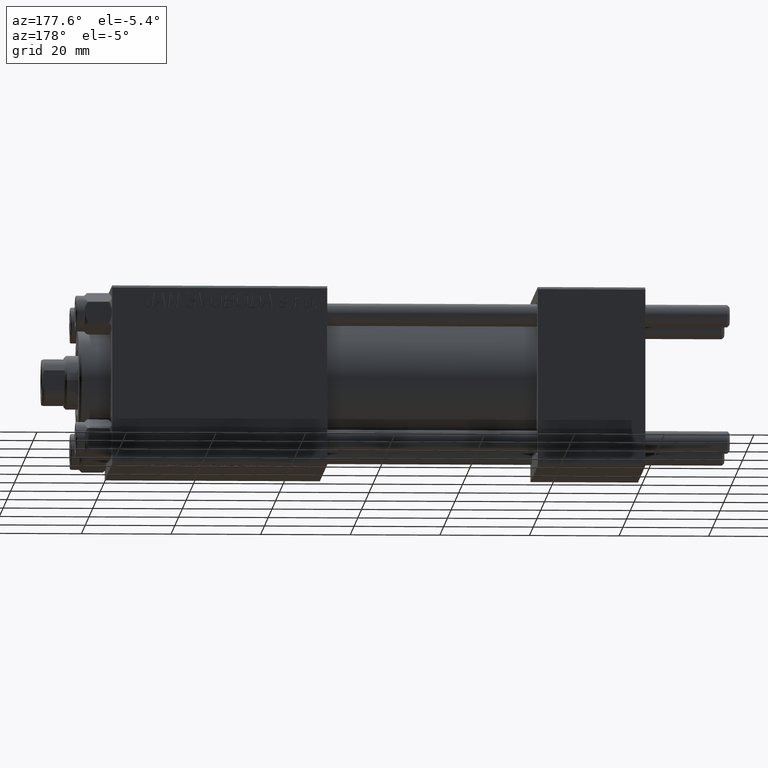
[diagram: clean part render]
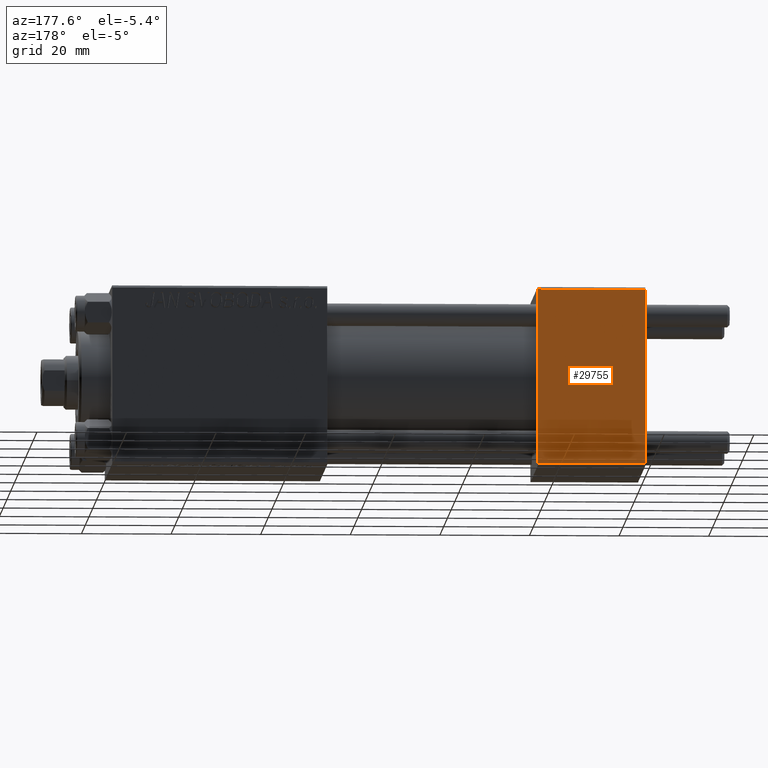
[diagram: same view with one face highlighted and labeled with its STEP entity id]
A machine part, auxiliary view. The second image highlights one B-rep face of the part: STEP entity #29755.
In plain terms, the highlighted planar face has unit normal (0, 1, 0).
Its self-contained STEP definition (entity closure, byte-faithful):
#767 = EDGE_CURVE ( 'NONE', #34701, #8099, #22754, .T. ) ;
#4119 = DIRECTION ( 'NONE',  ( -1.000000000000000000, 0.000000000000000000, 0.000000000000000000 ) ) ;
#5790 = DIRECTION ( 'NONE',  ( 0.000000000000000000, 0.000000000000000000, -1.000000000000000000 ) ) ;
#7184 = DIRECTION ( 'NONE',  ( 0.000000000000000000, 0.000000000000000000, -1.000000000000000000 ) ) ;
#8099 = VERTEX_POINT ( 'NONE', #47985 ) ;
#8672 = DIRECTION ( 'NONE',  ( -0.000000000000000000, 1.000000000000000000, 0.000000000000000000 ) ) ;
#10484 = CARTESIAN_POINT ( 'NONE',  ( 0.000000000000000000, 20.00000000000000000, 19.49999999999999289 ) ) ;
#10846 = DIRECTION ( 'NONE',  ( 1.000000000000000000, 0.000000000000000000, 0.000000000000000000 ) ) ;
#13462 = VERTEX_POINT ( 'NONE', #10484 ) ;
#18724 = CARTESIAN_POINT ( 'NONE',  ( 24.00000000000000000, 20.00000000000000000, 19.49999999999999289 ) ) ;
#20311 = VECTOR ( 'NONE', #7184, 1000.000000000000000 ) ;
#20971 = FACE_OUTER_BOUND ( 'NONE', #31496, .T. ) ;
#21500 = VECTOR ( 'NONE', #10846, 1000.000000000000000 ) ;
#22754 = LINE ( 'NONE', #23004, #43027 ) ;
#23004 = CARTESIAN_POINT ( 'NONE',  ( 24.00000000000000000, 20.00000000000000000, -19.50000000000002132 ) ) ;
#23490 = AXIS2_PLACEMENT_3D ( 'NONE', #36344, #8672, #32561 ) ;
#24292 = ORIENTED_EDGE ( 'NONE', *, *, #49007, .T. ) ;
#26845 = ORIENTED_EDGE ( 'NONE', *, *, #45031, .T. ) ;
#29755 = ADVANCED_FACE ( 'NONE', ( #20971 ), #43156, .T. ) ;
#30088 = LINE ( 'NONE', #41164, #20311 ) ;
#30392 = EDGE_CURVE ( 'NONE', #13462, #8099, #30088, .T. ) ;
#30491 = CARTESIAN_POINT ( 'NONE',  ( 24.00000000000000000, 20.00000000000000000, 19.49999999999999289 ) ) ;
#31496 = EDGE_LOOP ( 'NONE', ( #26845, #34913, #33962, #24292 ) ) ;
#32561 = DIRECTION ( 'NONE',  ( 0.000000000000000000, -0.000000000000000000, 1.000000000000000000 ) ) ;
#33962 = ORIENTED_EDGE ( 'NONE', *, *, #30392, .F. ) ;
#34701 = VERTEX_POINT ( 'NONE', #42434 ) ;
#34913 = ORIENTED_EDGE ( 'NONE', *, *, #767, .T. ) ;
#36344 = CARTESIAN_POINT ( 'NONE',  ( 24.00000000000000000, 20.00000000000000000, 20.00000000000000000 ) ) ;
#40035 = CARTESIAN_POINT ( 'NONE',  ( 24.00000000000000000, 20.00000000000000000, 20.00000000000000000 ) ) ;
#41164 = CARTESIAN_POINT ( 'NONE',  ( 0.000000000000000000, 20.00000000000000000, 20.00000000000000000 ) ) ;
#42434 = CARTESIAN_POINT ( 'NONE',  ( 24.00000000000000000, 20.00000000000000000, -19.50000000000002132 ) ) ;
#43027 = VECTOR ( 'NONE', #4119, 1000.000000000000000 ) ;
#43156 = PLANE ( 'NONE',  #23490 ) ;
#44353 = LINE ( 'NONE', #30491, #21500 ) ;
#45031 = EDGE_CURVE ( 'NONE', #46884, #34701, #47835, .T. ) ;
#45486 = VECTOR ( 'NONE', #5790, 1000.000000000000000 ) ;
#46884 = VERTEX_POINT ( 'NONE', #18724 ) ;
#47835 = LINE ( 'NONE', #40035, #45486 ) ;
#47985 = CARTESIAN_POINT ( 'NONE',  ( 0.000000000000000000, 20.00000000000000000, -19.50000000000002132 ) ) ;
#49007 = EDGE_CURVE ( 'NONE', #13462, #46884, #44353, .T. ) ;